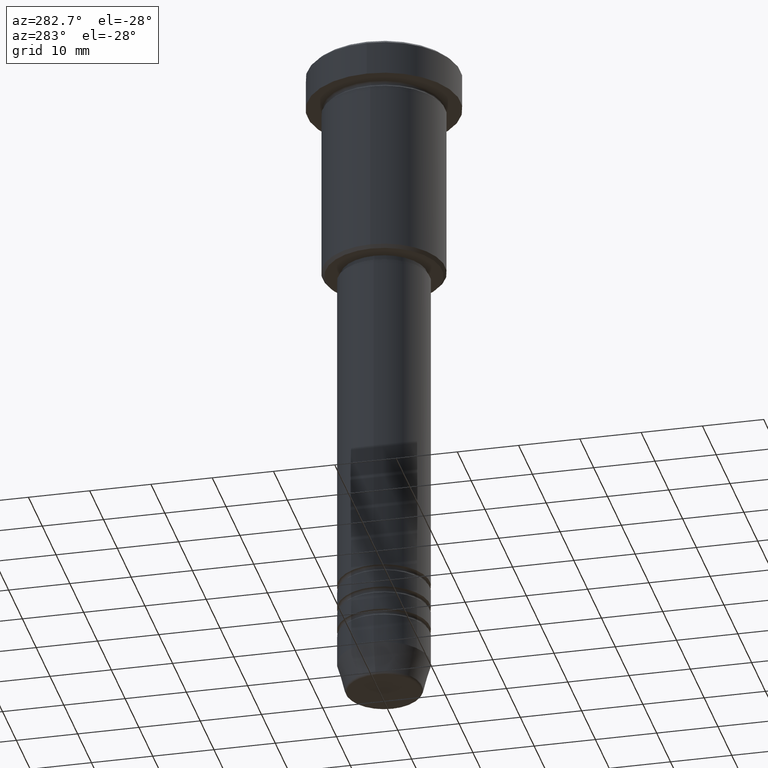
[diagram: clean part render]
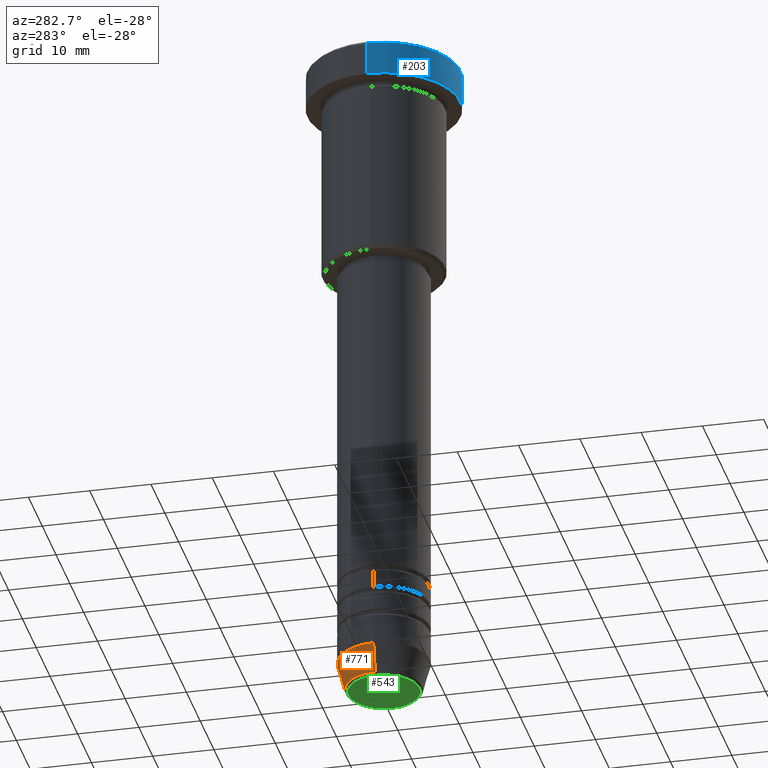
[diagram: same view with three faces highlighted in distinct colors, each labeled with its STEP entity id]
A machine part, auxiliary view with three faces highlighted in distinct colors.
Their STEP definitions:

[orange] entity #771 — the highlighted conical surface has half-angle 15 deg.
#39 = CARTESIAN_POINT ( 'NONE',  ( -6.259553456999438659, 8.425296549405629486E-16, -110.6294095225512564 ) ) ;
#40 = CARTESIAN_POINT ( 'NONE',  ( -7.500000000000000000, 9.184850993605147944E-16, -106.0000000000000000 ) ) ;
#88 = DIRECTION ( 'NONE',  ( 1.000000000000000000, 0.000000000000000000, 0.000000000000000000 ) ) ;
#97 = VECTOR ( 'NONE', #503, 1000.000000000000000 ) ;
#152 = EDGE_CURVE ( 'NONE', #1057, #1059, #602, .T. ) ;
#266 = DIRECTION ( 'NONE',  ( -0.000000000000000000, -0.000000000000000000, 1.000000000000000000 ) ) ;
#305 = LINE ( 'NONE', #668, #97 ) ;
#333 = ORIENTED_EDGE ( 'NONE', *, *, #559, .T. ) ;
#395 = CONICAL_SURFACE ( 'NONE', #566, 7.500000000000000000, 0.2617993877991500740 ) ;
#413 = ORIENTED_EDGE ( 'NONE', *, *, #1039, .T. ) ;
#435 = CARTESIAN_POINT ( 'NONE',  ( 7.500000000000000000, 0.000000000000000000, -106.0000000000000000 ) ) ;
#442 = CARTESIAN_POINT ( 'NONE',  ( 0.000000000000000000, 0.000000000000000000, -106.0000000000000000 ) ) ;
#484 = CARTESIAN_POINT ( 'NONE',  ( 7.500000000000000000, 0.000000000000000000, -106.0000000000000000 ) ) ;
#503 = DIRECTION ( 'NONE',  ( -0.2588190451025213501, 3.169619151431772337E-17, 0.9659258262890680902 ) ) ;
#551 = EDGE_CURVE ( 'NONE', #1059, #800, #1111, .T. ) ;
#559 = EDGE_CURVE ( 'NONE', #560, #800, #305, .T. ) ;
#560 = VERTEX_POINT ( 'NONE', #39 ) ;
#566 = AXIS2_PLACEMENT_3D ( 'NONE', #442, #1078, #617 ) ;
#593 = DIRECTION ( 'NONE',  ( 0.2588190451025213501, 0.000000000000000000, 0.9659258262890680902 ) ) ;
#602 = LINE ( 'NONE', #484, #727 ) ;
#617 = DIRECTION ( 'NONE',  ( 1.000000000000000000, 0.000000000000000000, 0.000000000000000000 ) ) ;
#648 = AXIS2_PLACEMENT_3D ( 'NONE', #909, #266, #88 ) ;
#662 = ORIENTED_EDGE ( 'NONE', *, *, #152, .F. ) ;
#668 = CARTESIAN_POINT ( 'NONE',  ( -7.500000000000000000, 9.184850993605147944E-16, -106.0000000000000000 ) ) ;
#727 = VECTOR ( 'NONE', #593, 1000.000000000000000 ) ;
#771 = ADVANCED_FACE ( 'NONE', ( #1069 ), #395, .T. ) ;
#800 = VERTEX_POINT ( 'NONE', #40 ) ;
#879 = ORIENTED_EDGE ( 'NONE', *, *, #551, .F. ) ;
#882 = DIRECTION ( 'NONE',  ( 1.000000000000000000, 0.000000000000000000, 0.000000000000000000 ) ) ;
#909 = CARTESIAN_POINT ( 'NONE',  ( 0.000000000000000000, 0.000000000000000000, -110.6294095225512564 ) ) ;
#942 = EDGE_LOOP ( 'NONE', ( #413, #333, #879, #662 ) ) ;
#972 = CARTESIAN_POINT ( 'NONE',  ( 0.000000000000000000, 0.000000000000000000, -106.0000000000000000 ) ) ;
#982 = AXIS2_PLACEMENT_3D ( 'NONE', #972, #1155, #882 ) ;
#1039 = EDGE_CURVE ( 'NONE', #1057, #560, #1172, .T. ) ;
#1057 = VERTEX_POINT ( 'NONE', #1096 ) ;
#1059 = VERTEX_POINT ( 'NONE', #435 ) ;
#1069 = FACE_OUTER_BOUND ( 'NONE', #942, .T. ) ;
#1078 = DIRECTION ( 'NONE',  ( -0.000000000000000000, -0.000000000000000000, 1.000000000000000000 ) ) ;
#1096 = CARTESIAN_POINT ( 'NONE',  ( 6.259553456999438659, 0.000000000000000000, -110.6294095225512564 ) ) ;
#1111 = CIRCLE ( 'NONE', #982, 7.500000000000000000 ) ;
#1155 = DIRECTION ( 'NONE',  ( -0.000000000000000000, -0.000000000000000000, 1.000000000000000000 ) ) ;
#1172 = CIRCLE ( 'NONE', #648, 6.259553456999438659 ) ;

[blue] entity #203 — the highlighted cylindrical surface (partial cylindrical patch) has radius 12.5 mm, axis along (-0, -0, 1).
#2 = AXIS2_PLACEMENT_3D ( 'NONE', #562, #24, #832 ) ;
#7 = CARTESIAN_POINT ( 'NONE',  ( 0.000000000000000000, 0.000000000000000000, -0.5000000000000056621 ) ) ;
#24 = DIRECTION ( 'NONE',  ( -0.000000000000000000, -0.000000000000000000, 1.000000000000000000 ) ) ;
#53 = DIRECTION ( 'NONE',  ( 1.000000000000000000, 0.000000000000000000, 0.000000000000000000 ) ) ;
#83 = CARTESIAN_POINT ( 'NONE',  ( -12.50000000000000000, 1.530808498934191521E-15, -5.999999999999996447 ) ) ;
#127 = ORIENTED_EDGE ( 'NONE', *, *, #168, .T. ) ;
#139 = CARTESIAN_POINT ( 'NONE',  ( 12.50000000000000000, 0.000000000000000000, 0.000000000000000000 ) ) ;
#168 = EDGE_CURVE ( 'NONE', #675, #595, #864, .T. ) ;
#180 = VECTOR ( 'NONE', #678, 1000.000000000000000 ) ;
#190 = ORIENTED_EDGE ( 'NONE', *, *, #983, .T. ) ;
#203 = ADVANCED_FACE ( 'NONE', ( #974 ), #499, .T. ) ;
#229 = CIRCLE ( 'NONE', #2, 12.50000000000000000 ) ;
#275 = LINE ( 'NONE', #635, #910 ) ;
#285 = AXIS2_PLACEMENT_3D ( 'NONE', #420, #878, #53 ) ;
#303 = CIRCLE ( 'NONE', #439, 12.50000000000000000 ) ;
#331 = CARTESIAN_POINT ( 'NONE',  ( -12.50000000000000000, 1.530808498934191521E-15, -0.5000000000000056621 ) ) ;
#397 = CARTESIAN_POINT ( 'NONE',  ( 12.50000000000000000, 0.000000000000000000, -0.5000000000000056621 ) ) ;
#420 = CARTESIAN_POINT ( 'NONE',  ( 0.000000000000000000, 0.000000000000000000, 0.000000000000000000 ) ) ;
#424 = EDGE_CURVE ( 'NONE', #702, #675, #229, .T. ) ;
#439 = AXIS2_PLACEMENT_3D ( 'NONE', #7, #821, #518 ) ;
#499 = CYLINDRICAL_SURFACE ( 'NONE', #285, 12.50000000000000000 ) ;
#518 = DIRECTION ( 'NONE',  ( 1.000000000000000000, 0.000000000000000000, 0.000000000000000000 ) ) ;
#562 = CARTESIAN_POINT ( 'NONE',  ( 0.000000000000000000, 0.000000000000000000, -5.999999999999996447 ) ) ;
#595 = VERTEX_POINT ( 'NONE', #397 ) ;
#604 = EDGE_LOOP ( 'NONE', ( #1159, #989, #127, #190 ) ) ;
#635 = CARTESIAN_POINT ( 'NONE',  ( -12.50000000000000000, 1.530808498934191521E-15, 0.000000000000000000 ) ) ;
#675 = VERTEX_POINT ( 'NONE', #1166 ) ;
#678 = DIRECTION ( 'NONE',  ( -0.000000000000000000, -0.000000000000000000, 1.000000000000000000 ) ) ;
#702 = VERTEX_POINT ( 'NONE', #83 ) ;
#821 = DIRECTION ( 'NONE',  ( 0.000000000000000000, 0.000000000000000000, -1.000000000000000000 ) ) ;
#830 = VERTEX_POINT ( 'NONE', #331 ) ;
#832 = DIRECTION ( 'NONE',  ( 1.000000000000000000, 0.000000000000000000, 0.000000000000000000 ) ) ;
#864 = LINE ( 'NONE', #139, #180 ) ;
#878 = DIRECTION ( 'NONE',  ( -0.000000000000000000, -0.000000000000000000, 1.000000000000000000 ) ) ;
#910 = VECTOR ( 'NONE', #1010, 1000.000000000000000 ) ;
#974 = FACE_OUTER_BOUND ( 'NONE', #604, .T. ) ;
#983 = EDGE_CURVE ( 'NONE', #595, #830, #303, .T. ) ;
#989 = ORIENTED_EDGE ( 'NONE', *, *, #424, .T. ) ;
#1010 = DIRECTION ( 'NONE',  ( -0.000000000000000000, -0.000000000000000000, 1.000000000000000000 ) ) ;
#1088 = EDGE_CURVE ( 'NONE', #702, #830, #275, .T. ) ;
#1159 = ORIENTED_EDGE ( 'NONE', *, *, #1088, .F. ) ;
#1166 = CARTESIAN_POINT ( 'NONE',  ( 12.50000000000000000, 0.000000000000000000, -5.999999999999996447 ) ) ;

[green] entity #543 — the highlighted planar face has unit normal (0, -0, 1).
#9 = EDGE_CURVE ( 'NONE', #696, #108, #453, .T. ) ;
#25 = CIRCLE ( 'NONE', #179, 5.776590543854905668 ) ;
#46 = DIRECTION ( 'NONE',  ( 1.000000000000000000, 0.000000000000000000, 0.000000000000000000 ) ) ;
#56 = ORIENTED_EDGE ( 'NONE', *, *, #9, .T. ) ;
#80 = AXIS2_PLACEMENT_3D ( 'NONE', #323, #686, #46 ) ;
#108 = VERTEX_POINT ( 'NONE', #244 ) ;
#137 = CARTESIAN_POINT ( 'NONE',  ( 0.000000000000000000, 0.000000000000000000, -110.9999999999999858 ) ) ;
#149 = PLANE ( 'NONE',  #80 ) ;
#162 = CARTESIAN_POINT ( 'NONE',  ( 5.776590543854905668, 0.000000000000000000, -110.9999999999999858 ) ) ;
#179 = AXIS2_PLACEMENT_3D ( 'NONE', #137, #699, #1140 ) ;
#236 = FACE_OUTER_BOUND ( 'NONE', #614, .T. ) ;
#244 = CARTESIAN_POINT ( 'NONE',  ( -5.776590543854905668, 7.370012612361445601E-16, -110.9999999999999858 ) ) ;
#323 = CARTESIAN_POINT ( 'NONE',  ( 0.000000000000000000, 0.000000000000000000, -110.9999999999999858 ) ) ;
#453 = CIRCLE ( 'NONE', #944, 5.776590543854905668 ) ;
#462 = DIRECTION ( 'NONE',  ( 1.000000000000000000, 0.000000000000000000, 0.000000000000000000 ) ) ;
#485 = ORIENTED_EDGE ( 'NONE', *, *, #874, .T. ) ;
#543 = ADVANCED_FACE ( 'NONE', ( #236 ), #149, .F. ) ;
#554 = CARTESIAN_POINT ( 'NONE',  ( 0.000000000000000000, 0.000000000000000000, -110.9999999999999858 ) ) ;
#573 = DIRECTION ( 'NONE',  ( 0.000000000000000000, 0.000000000000000000, -1.000000000000000000 ) ) ;
#614 = EDGE_LOOP ( 'NONE', ( #56, #485 ) ) ;
#686 = DIRECTION ( 'NONE',  ( 0.000000000000000000, -0.000000000000000000, 1.000000000000000000 ) ) ;
#696 = VERTEX_POINT ( 'NONE', #162 ) ;
#699 = DIRECTION ( 'NONE',  ( 0.000000000000000000, 0.000000000000000000, -1.000000000000000000 ) ) ;
#874 = EDGE_CURVE ( 'NONE', #108, #696, #25, .T. ) ;
#944 = AXIS2_PLACEMENT_3D ( 'NONE', #554, #573, #462 ) ;
#1140 = DIRECTION ( 'NONE',  ( 1.000000000000000000, 0.000000000000000000, 0.000000000000000000 ) ) ;